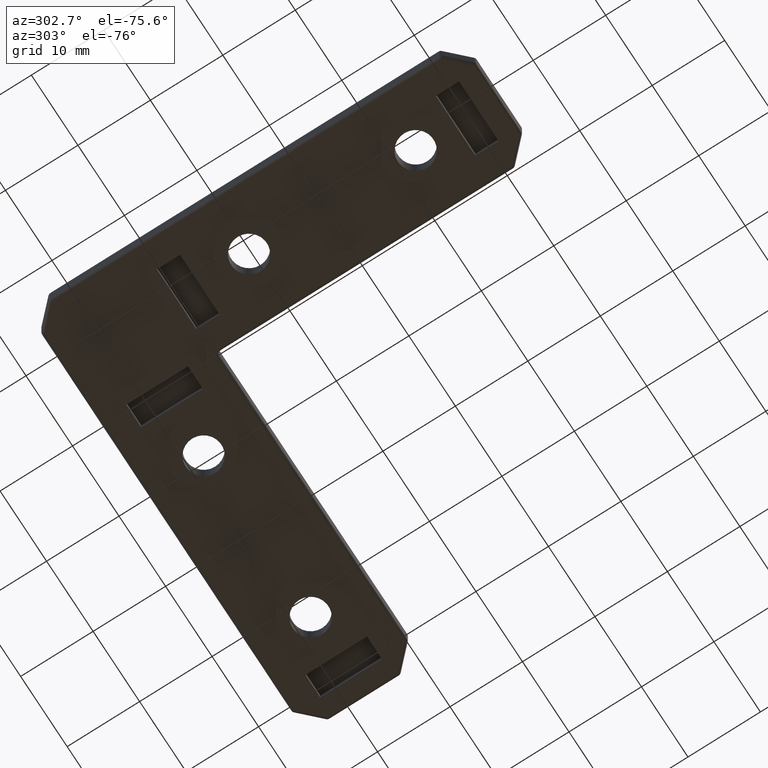
[diagram: clean part render]
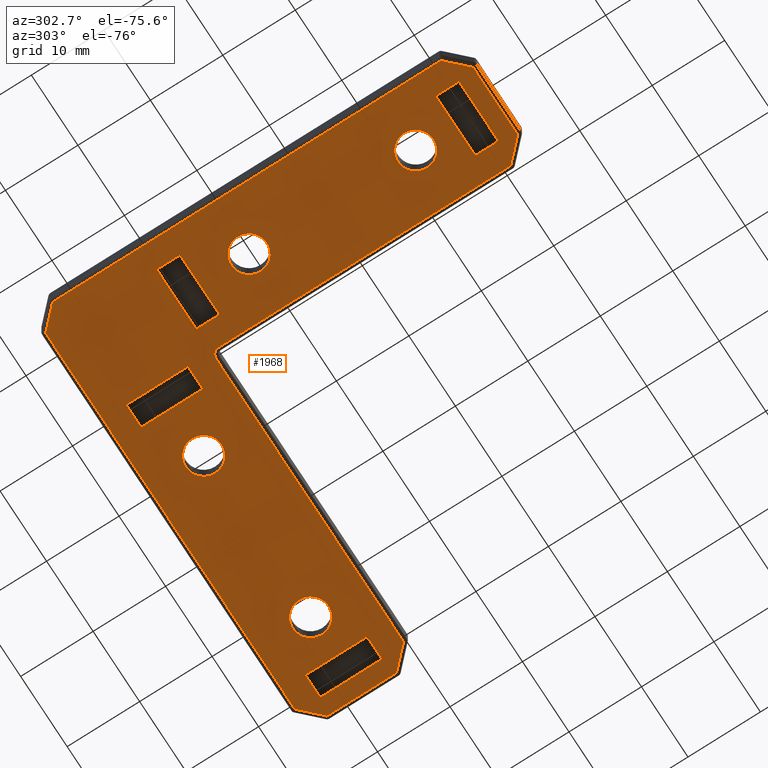
[diagram: same view with one face highlighted and labeled with its STEP entity id]
A machine part, auxiliary view. The second image highlights one B-rep face of the part: STEP entity #1968.
In plain terms, the highlighted planar face has unit normal (0, 0, 1).
Its self-contained STEP definition (entity closure, byte-faithful):
#41=FACE_BOUND('',#434,.T.);
#42=FACE_BOUND('',#435,.T.);
#43=FACE_BOUND('',#436,.T.);
#44=FACE_BOUND('',#437,.T.);
#45=FACE_BOUND('',#438,.T.);
#46=FACE_BOUND('',#439,.T.);
#47=FACE_BOUND('',#440,.T.);
#48=FACE_BOUND('',#441,.T.);
#57=CIRCLE('',#2056,2.4585);
#59=CIRCLE('',#2059,2.4585);
#61=CIRCLE('',#2062,2.4585);
#63=CIRCLE('',#2065,2.4585);
#70=CIRCLE('',#2074,1.);
#173=PLANE('',#2190);
#301=FACE_OUTER_BOUND('',#433,.T.);
#433=EDGE_LOOP('',(#1692,#1693,#1694,#1695,#1696,#1697,#1698,#1699,#1700,
#1701,#1702,#1703));
#434=EDGE_LOOP('',(#1704,#1705,#1706,#1707));
#435=EDGE_LOOP('',(#1708,#1709,#1710,#1711));
#436=EDGE_LOOP('',(#1712,#1713,#1714,#1715));
#437=EDGE_LOOP('',(#1716,#1717,#1718,#1719));
#438=EDGE_LOOP('',(#1720));
#439=EDGE_LOOP('',(#1721));
#440=EDGE_LOOP('',(#1722));
#441=EDGE_LOOP('',(#1723));
#530=LINE('',#2967,#708);
#534=LINE('',#2975,#712);
#537=LINE('',#2981,#715);
#540=LINE('',#2986,#718);
#542=LINE('',#2992,#720);
#546=LINE('',#3000,#724);
#549=LINE('',#3006,#727);
#552=LINE('',#3011,#730);
#554=LINE('',#3017,#732);
#558=LINE('',#3025,#736);
#561=LINE('',#3031,#739);
#564=LINE('',#3036,#742);
#566=LINE('',#3042,#744);
#570=LINE('',#3050,#748);
#573=LINE('',#3056,#751);
#576=LINE('',#3061,#754);
#591=LINE('',#3133,#769);
#598=LINE('',#3174,#776);
#603=LINE('',#3209,#781);
#610=LINE('',#3248,#788);
#615=LINE('',#3283,#793);
#616=LINE('',#3285,#794);
#635=LINE('',#3334,#813);
#640=LINE('',#3342,#818);
#647=LINE('',#3352,#825);
#652=LINE('',#3360,#830);
#654=LINE('',#3363,#832);
#708=VECTOR('',#2347,8.5);
#712=VECTOR('',#2353,3.2);
#715=VECTOR('',#2358,8.5);
#718=VECTOR('',#2363,3.2);
#720=VECTOR('',#2369,3.2);
#724=VECTOR('',#2375,8.5);
#727=VECTOR('',#2380,3.2);
#730=VECTOR('',#2385,8.5);
#732=VECTOR('',#2391,8.5);
#736=VECTOR('',#2397,3.2);
#739=VECTOR('',#2402,8.5);
#742=VECTOR('',#2407,3.2);
#744=VECTOR('',#2413,3.2);
#748=VECTOR('',#2419,8.5);
#751=VECTOR('',#2424,3.2);
#754=VECTOR('',#2429,8.5);
#769=VECTOR('',#2514,3.8284271247462);
#776=VECTOR('',#2563,9.58578643762691);
#781=VECTOR('',#2604,3.82842712474619);
#788=VECTOR('',#2651,53.5857864376269);
#793=VECTOR('',#2692,3.82842712474618);
#794=VECTOR('',#2695,53.5857864376269);
#813=VECTOR('',#2756,3.8284271247462);
#818=VECTOR('',#2767,9.58578643762691);
#825=VECTOR('',#2780,3.82842712474619);
#830=VECTOR('',#2791,40.2928932188134);
#832=VECTOR('',#2795,40.2928932188135);
#878=VERTEX_POINT('',#2965);
#879=VERTEX_POINT('',#2966);
#882=VERTEX_POINT('',#2974);
#884=VERTEX_POINT('',#2980);
#886=VERTEX_POINT('',#2990);
#887=VERTEX_POINT('',#2991);
#890=VERTEX_POINT('',#2999);
#892=VERTEX_POINT('',#3005);
#894=VERTEX_POINT('',#3015);
#895=VERTEX_POINT('',#3016);
#898=VERTEX_POINT('',#3024);
#900=VERTEX_POINT('',#3030);
#902=VERTEX_POINT('',#3040);
#903=VERTEX_POINT('',#3041);
#906=VERTEX_POINT('',#3049);
#908=VERTEX_POINT('',#3055);
#914=VERTEX_POINT('',#3089);
#916=VERTEX_POINT('',#3094);
#918=VERTEX_POINT('',#3099);
#920=VERTEX_POINT('',#3104);
#924=VERTEX_POINT('',#3112);
#927=VERTEX_POINT('',#3119);
#928=VERTEX_POINT('',#3121);
#931=VERTEX_POINT('',#3128);
#937=VERTEX_POINT('',#3148);
#944=VERTEX_POINT('',#3170);
#950=VERTEX_POINT('',#3187);
#956=VERTEX_POINT('',#3204);
#962=VERTEX_POINT('',#3224);
#968=VERTEX_POINT('',#3244);
#974=VERTEX_POINT('',#3261);
#980=VERTEX_POINT('',#3278);
#1058=EDGE_CURVE('',#878,#879,#530,.T.);
#1062=EDGE_CURVE('',#882,#878,#534,.T.);
#1065=EDGE_CURVE('',#884,#882,#537,.T.);
#1068=EDGE_CURVE('',#879,#884,#540,.T.);
#1070=EDGE_CURVE('',#886,#887,#542,.T.);
#1074=EDGE_CURVE('',#890,#886,#546,.T.);
#1077=EDGE_CURVE('',#892,#890,#549,.T.);
#1080=EDGE_CURVE('',#887,#892,#552,.T.);
#1082=EDGE_CURVE('',#894,#895,#554,.T.);
#1086=EDGE_CURVE('',#898,#894,#558,.T.);
#1089=EDGE_CURVE('',#900,#898,#561,.T.);
#1092=EDGE_CURVE('',#895,#900,#564,.T.);
#1094=EDGE_CURVE('',#902,#903,#566,.T.);
#1098=EDGE_CURVE('',#906,#902,#570,.T.);
#1101=EDGE_CURVE('',#908,#906,#573,.T.);
#1104=EDGE_CURVE('',#903,#908,#576,.T.);
#1118=EDGE_CURVE('',#914,#914,#57,.T.);
#1120=EDGE_CURVE('',#916,#916,#59,.T.);
#1122=EDGE_CURVE('',#918,#918,#61,.T.);
#1124=EDGE_CURVE('',#920,#920,#63,.T.);
#1131=EDGE_CURVE('',#927,#928,#70,.T.);
#1137=EDGE_CURVE('',#924,#931,#591,.T.);
#1157=EDGE_CURVE('',#931,#944,#598,.T.);
#1174=EDGE_CURVE('',#944,#956,#603,.T.);
#1193=EDGE_CURVE('',#956,#968,#610,.T.);
#1210=EDGE_CURVE('',#968,#980,#615,.T.);
#1211=EDGE_CURVE('',#980,#974,#616,.T.);
#1239=EDGE_CURVE('',#974,#962,#635,.T.);
#1244=EDGE_CURVE('',#962,#950,#640,.T.);
#1251=EDGE_CURVE('',#950,#937,#647,.T.);
#1256=EDGE_CURVE('',#937,#927,#652,.T.);
#1258=EDGE_CURVE('',#928,#924,#654,.T.);
#1692=ORIENTED_EDGE('',*,*,#1137,.F.);
#1693=ORIENTED_EDGE('',*,*,#1258,.F.);
#1694=ORIENTED_EDGE('',*,*,#1131,.F.);
#1695=ORIENTED_EDGE('',*,*,#1256,.F.);
#1696=ORIENTED_EDGE('',*,*,#1251,.F.);
#1697=ORIENTED_EDGE('',*,*,#1244,.F.);
#1698=ORIENTED_EDGE('',*,*,#1239,.F.);
#1699=ORIENTED_EDGE('',*,*,#1211,.F.);
#1700=ORIENTED_EDGE('',*,*,#1210,.F.);
#1701=ORIENTED_EDGE('',*,*,#1193,.F.);
#1702=ORIENTED_EDGE('',*,*,#1174,.F.);
#1703=ORIENTED_EDGE('',*,*,#1157,.F.);
#1704=ORIENTED_EDGE('',*,*,#1058,.T.);
#1705=ORIENTED_EDGE('',*,*,#1068,.T.);
#1706=ORIENTED_EDGE('',*,*,#1065,.T.);
#1707=ORIENTED_EDGE('',*,*,#1062,.T.);
#1708=ORIENTED_EDGE('',*,*,#1070,.T.);
#1709=ORIENTED_EDGE('',*,*,#1080,.T.);
#1710=ORIENTED_EDGE('',*,*,#1077,.T.);
#1711=ORIENTED_EDGE('',*,*,#1074,.T.);
#1712=ORIENTED_EDGE('',*,*,#1082,.T.);
#1713=ORIENTED_EDGE('',*,*,#1092,.T.);
#1714=ORIENTED_EDGE('',*,*,#1089,.T.);
#1715=ORIENTED_EDGE('',*,*,#1086,.T.);
#1716=ORIENTED_EDGE('',*,*,#1094,.T.);
#1717=ORIENTED_EDGE('',*,*,#1104,.T.);
#1718=ORIENTED_EDGE('',*,*,#1101,.T.);
#1719=ORIENTED_EDGE('',*,*,#1098,.T.);
#1720=ORIENTED_EDGE('',*,*,#1118,.T.);
#1721=ORIENTED_EDGE('',*,*,#1120,.T.);
#1722=ORIENTED_EDGE('',*,*,#1122,.T.);
#1723=ORIENTED_EDGE('',*,*,#1124,.T.);
#1968=ADVANCED_FACE('',(#301,#41,#42,#43,#44,#45,#46,#47,#48),#173,.F.);
#2056=AXIS2_PLACEMENT_3D('',#3090,#2463,#2464);
#2059=AXIS2_PLACEMENT_3D('',#3095,#2469,#2470);
#2062=AXIS2_PLACEMENT_3D('',#3100,#2475,#2476);
#2065=AXIS2_PLACEMENT_3D('',#3105,#2481,#2482);
#2074=AXIS2_PLACEMENT_3D('',#3122,#2499,#2500);
#2190=AXIS2_PLACEMENT_3D('',#3365,#2797,#2798);
#2347=DIRECTION('',(0.,-1.,0.));
#2353=DIRECTION('',(-1.,0.,0.));
#2358=DIRECTION('',(0.,1.,0.));
#2363=DIRECTION('',(1.,0.,0.));
#2369=DIRECTION('',(0.,-1.,0.));
#2375=DIRECTION('',(-1.,0.,0.));
#2380=DIRECTION('',(0.,1.,0.));
#2385=DIRECTION('',(1.,0.,0.));
#2391=DIRECTION('',(1.,1.30614473485313E-16,0.));
#2397=DIRECTION('',(0.,-1.,0.));
#2402=DIRECTION('',(-1.,0.,0.));
#2407=DIRECTION('',(0.,1.,0.));
#2413=DIRECTION('',(-1.,0.,0.));
#2419=DIRECTION('',(0.,1.,0.));
#2424=DIRECTION('',(1.,0.,0.));
#2429=DIRECTION('',(0.,-1.,0.));
#2463=DIRECTION('center_axis',(0.,0.,1.));
#2464=DIRECTION('ref_axis',(1.,0.,0.));
#2469=DIRECTION('center_axis',(0.,0.,1.));
#2470=DIRECTION('ref_axis',(1.,0.,0.));
#2475=DIRECTION('center_axis',(0.,0.,1.));
#2476=DIRECTION('ref_axis',(1.,0.,0.));
#2481=DIRECTION('center_axis',(0.,0.,1.));
#2482=DIRECTION('ref_axis',(1.,0.,0.));
#2499=DIRECTION('center_axis',(0.,0.,-1.));
#2500=DIRECTION('ref_axis',(-0.707106781186548,0.707106781186547,0.));
#2514=DIRECTION('',(0.707106781186547,0.707106781186548,0.));
#2563=DIRECTION('',(0.,1.,0.));
#2604=DIRECTION('',(-0.707106781186548,0.707106781186547,0.));
#2651=DIRECTION('',(-1.,0.,0.));
#2692=DIRECTION('',(-0.707106781186547,-0.707106781186548,0.));
#2695=DIRECTION('',(0.,-1.,0.));
#2756=DIRECTION('',(0.707106781186548,-0.707106781186548,0.));
#2767=DIRECTION('',(1.,0.,0.));
#2780=DIRECTION('',(0.707106781186548,0.707106781186547,0.));
#2791=DIRECTION('',(0.,1.,0.));
#2795=DIRECTION('',(1.,0.,0.));
#2797=DIRECTION('center_axis',(0.,0.,1.));
#2798=DIRECTION('ref_axis',(1.,0.,0.));
#2965=CARTESIAN_POINT('',(-0.5,12.25,0.));
#2966=CARTESIAN_POINT('',(-0.5,3.75,0.));
#2967=CARTESIAN_POINT('',(-0.5,3.15833333333334,0.));
#2974=CARTESIAN_POINT('',(2.7,12.25,0.));
#2975=CARTESIAN_POINT('',(4.31666666666667,12.25,0.));
#2980=CARTESIAN_POINT('',(2.7,3.75,0.));
#2981=CARTESIAN_POINT('',(2.7,-1.09166666666666,0.));
#2986=CARTESIAN_POINT('',(2.71666666666667,3.75,0.));
#2990=CARTESIAN_POINT('',(-12.25,-38.,0.));
#2991=CARTESIAN_POINT('',(-12.25,-41.2,0.));
#2992=CARTESIAN_POINT('',(-12.25,-21.9666666666667,0.));
#2999=CARTESIAN_POINT('',(-3.75,-38.,0.));
#3000=CARTESIAN_POINT('',(1.09166666666667,-38.,0.));
#3005=CARTESIAN_POINT('',(-3.75,-41.2,0.));
#3006=CARTESIAN_POINT('',(-3.75,-23.5666666666667,0.));
#3011=CARTESIAN_POINT('',(-3.15833333333333,-41.2,0.));
#3015=CARTESIAN_POINT('',(-12.25,-2.7,0.));
#3016=CARTESIAN_POINT('',(-3.75,-2.7,0.));
#3017=CARTESIAN_POINT('',(-3.15833333333333,-2.7,0.));
#3024=CARTESIAN_POINT('',(-12.25,0.5,0.));
#3025=CARTESIAN_POINT('',(-12.25,-2.71666666666667,0.));
#3030=CARTESIAN_POINT('',(-3.75,0.5,0.));
#3031=CARTESIAN_POINT('',(1.09166666666667,0.5,0.));
#3036=CARTESIAN_POINT('',(-3.75,-4.31666666666667,0.));
#3040=CARTESIAN_POINT('',(41.2,12.25,0.));
#3041=CARTESIAN_POINT('',(38.,12.25,0.));
#3042=CARTESIAN_POINT('',(23.5666666666667,12.25,0.));
#3049=CARTESIAN_POINT('',(41.2,3.75,0.));
#3050=CARTESIAN_POINT('',(41.2,-1.09166666666666,0.));
#3055=CARTESIAN_POINT('',(38.,3.75,0.));
#3056=CARTESIAN_POINT('',(21.9666666666667,3.75,0.));
#3061=CARTESIAN_POINT('',(38.,3.15833333333334,0.));
#3089=CARTESIAN_POINT('',(-10.4585,-9.5,0.));
#3090=CARTESIAN_POINT('Origin',(-8.,-9.5,0.));
#3094=CARTESIAN_POINT('',(30.0415,8.,0.));
#3095=CARTESIAN_POINT('Origin',(32.5,8.,0.));
#3099=CARTESIAN_POINT('',(7.0415,8.,0.));
#3100=CARTESIAN_POINT('Origin',(9.5,8.,0.));
#3104=CARTESIAN_POINT('',(-10.4585,-32.5,0.));
#3105=CARTESIAN_POINT('Origin',(-8.,-32.5,0.));
#3112=CARTESIAN_POINT('',(40.7928932188135,0.499999999999998,0.));
#3119=CARTESIAN_POINT('',(-0.5,-0.499999999999998,0.));
#3121=CARTESIAN_POINT('',(0.5,0.5,0.));
#3122=CARTESIAN_POINT('Origin',(0.5,-0.499999999999998,0.));
#3128=CARTESIAN_POINT('',(43.5,3.20710678118655,0.));
#3133=CARTESIAN_POINT('',(31.1464466094067,-9.14644660940673,0.));
#3148=CARTESIAN_POINT('',(-0.5,-40.7928932188134,0.));
#3170=CARTESIAN_POINT('',(43.5,12.7928932188135,0.));
#3174=CARTESIAN_POINT('',(43.5,-2.96666666666666,0.));
#3187=CARTESIAN_POINT('',(-3.20710678118655,-43.5,0.));
#3204=CARTESIAN_POINT('',(40.7928932188135,15.5,0.));
#3209=CARTESIAN_POINT('',(38.1131132760734,18.1797799427401,0.));
#3224=CARTESIAN_POINT('',(-12.7928932188135,-43.5,0.));
#3244=CARTESIAN_POINT('',(-12.7928932188135,15.5,0.));
#3248=CARTESIAN_POINT('',(24.9666666666667,15.5,0.));
#3261=CARTESIAN_POINT('',(-15.5,-40.7928932188134,0.));
#3278=CARTESIAN_POINT('',(-15.5,12.7928932188135,0.));
#3283=CARTESIAN_POINT('',(-14.1464466094067,14.1464466094067,0.));
#3285=CARTESIAN_POINT('',(-15.5,5.03333333333334,0.));
#3334=CARTESIAN_POINT('',(-18.1797799427401,-38.1131132760734,0.));
#3342=CARTESIAN_POINT('',(-5.03333333333333,-43.5,0.));
#3352=CARTESIAN_POINT('',(9.14644660940673,-31.1464466094067,0.));
#3360=CARTESIAN_POINT('',(-0.5,-24.9666666666667,0.));
#3363=CARTESIAN_POINT('',(2.96666666666667,0.5,0.));
#3365=CARTESIAN_POINT('Origin',(5.93333333333333,-5.93333333333333,0.));